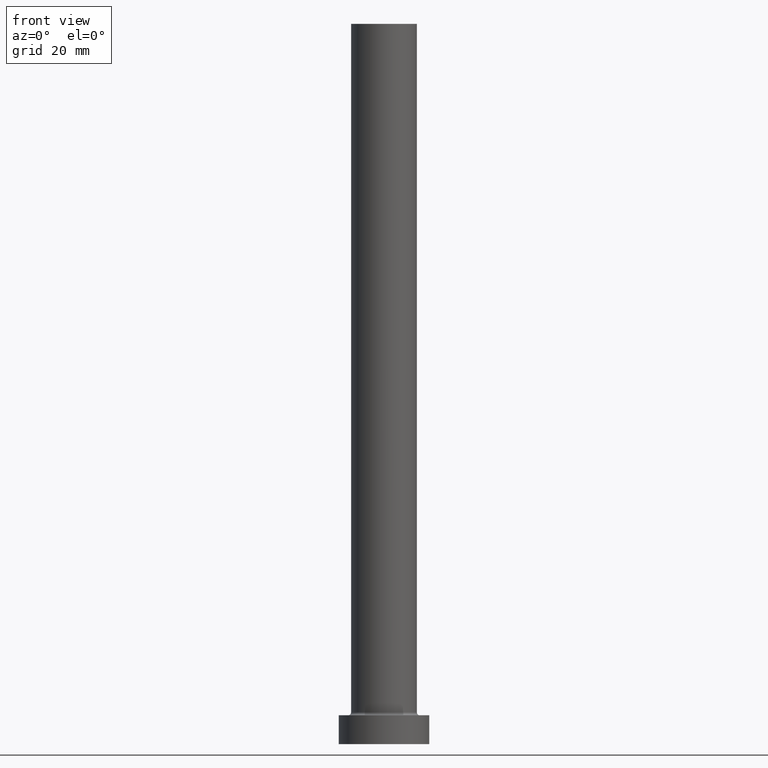
[diagram: clean part render]
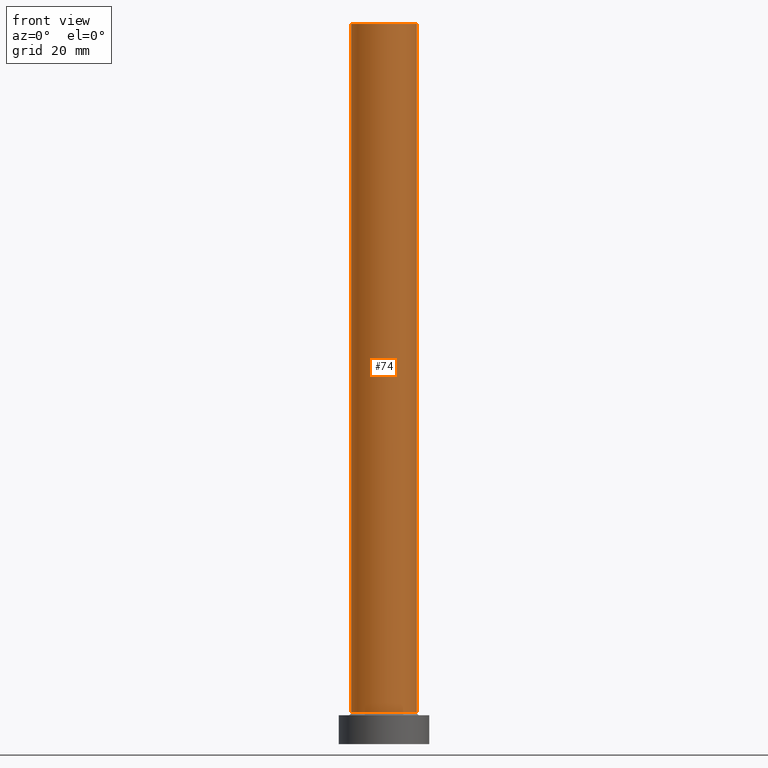
[diagram: same view with one face highlighted and labeled with its STEP entity id]
A machine part, front view. The second image highlights one B-rep face of the part: STEP entity #74.
In plain terms, the highlighted cylindrical surface (edge-blend (fillet) strip) has radius 8 mm, axis along (-0, -0, -1).
Its self-contained STEP definition (entity closure, byte-faithful):
#25 = CARTESIAN_POINT ( 'NONE',  ( 0.000000000000000000, 0.000000000000000000, 7.700000000000012612 ) ) ;
#29 = FACE_OUTER_BOUND ( 'NONE', #222, .T. ) ;
#48 = CIRCLE ( 'NONE', #457, 8.000000000000000000 ) ;
#58 = VECTOR ( 'NONE', #399, 1000.000000000000000 ) ;
#63 = CYLINDRICAL_SURFACE ( 'NONE', #195, 8.000000000000000000 ) ;
#70 = VECTOR ( 'NONE', #77, 1000.000000000000000 ) ;
#74 = ADVANCED_FACE ( 'NONE', ( #29 ), #63, .T. ) ;
#77 = DIRECTION ( 'NONE',  ( -0.000000000000000000, -0.000000000000000000, -1.000000000000000000 ) ) ;
#83 = VERTEX_POINT ( 'NONE', #272 ) ;
#90 = EDGE_CURVE ( 'NONE', #83, #200, #48, .T. ) ;
#103 = CARTESIAN_POINT ( 'NONE',  ( 8.000000000000000000, 9.797174393178823685E-16, 175.0000000000000284 ) ) ;
#108 = DIRECTION ( 'NONE',  ( 1.000000000000000000, 0.000000000000000000, 0.000000000000000000 ) ) ;
#113 = CARTESIAN_POINT ( 'NONE',  ( 8.000000000000000000, 9.797174393178823685E-16, 175.0000000000000284 ) ) ;
#121 = ORIENTED_EDGE ( 'NONE', *, *, #90, .F. ) ;
#123 = EDGE_CURVE ( 'NONE', #83, #196, #364, .T. ) ;
#127 = CARTESIAN_POINT ( 'NONE',  ( 8.000000000000000000, 9.797174393178823685E-16, 7.700000000000012612 ) ) ;
#131 = DIRECTION ( 'NONE',  ( 1.000000000000000000, 0.000000000000000000, 0.000000000000000000 ) ) ;
#148 = CARTESIAN_POINT ( 'NONE',  ( 0.000000000000000000, 0.000000000000000000, 175.0000000000000284 ) ) ;
#164 = CIRCLE ( 'NONE', #325, 8.000000000000000000 ) ;
#166 = DIRECTION ( 'NONE',  ( -0.000000000000000000, -0.000000000000000000, -1.000000000000000000 ) ) ;
#182 = CARTESIAN_POINT ( 'NONE',  ( -8.000000000000000000, 0.000000000000000000, 175.0000000000000284 ) ) ;
#195 = AXIS2_PLACEMENT_3D ( 'NONE', #316, #166, #281 ) ;
#196 = VERTEX_POINT ( 'NONE', #423 ) ;
#200 = VERTEX_POINT ( 'NONE', #103 ) ;
#201 = DIRECTION ( 'NONE',  ( 0.000000000000000000, 0.000000000000000000, 1.000000000000000000 ) ) ;
#222 = EDGE_LOOP ( 'NONE', ( #233, #121, #328, #330 ) ) ;
#233 = ORIENTED_EDGE ( 'NONE', *, *, #292, .F. ) ;
#272 = CARTESIAN_POINT ( 'NONE',  ( -8.000000000000000000, 0.000000000000000000, 175.0000000000000284 ) ) ;
#281 = DIRECTION ( 'NONE',  ( -1.000000000000000000, 0.000000000000000000, 0.000000000000000000 ) ) ;
#287 = DIRECTION ( 'NONE',  ( 0.000000000000000000, 0.000000000000000000, 1.000000000000000000 ) ) ;
#292 = EDGE_CURVE ( 'NONE', #200, #435, #317, .T. ) ;
#316 = CARTESIAN_POINT ( 'NONE',  ( 0.000000000000000000, 0.000000000000000000, 175.0000000000000284 ) ) ;
#317 = LINE ( 'NONE', #113, #70 ) ;
#325 = AXIS2_PLACEMENT_3D ( 'NONE', #25, #201, #131 ) ;
#328 = ORIENTED_EDGE ( 'NONE', *, *, #123, .T. ) ;
#330 = ORIENTED_EDGE ( 'NONE', *, *, #397, .T. ) ;
#364 = LINE ( 'NONE', #182, #58 ) ;
#397 = EDGE_CURVE ( 'NONE', #196, #435, #164, .T. ) ;
#399 = DIRECTION ( 'NONE',  ( -0.000000000000000000, -0.000000000000000000, -1.000000000000000000 ) ) ;
#423 = CARTESIAN_POINT ( 'NONE',  ( -8.000000000000000000, 0.000000000000000000, 7.700000000000012612 ) ) ;
#435 = VERTEX_POINT ( 'NONE', #127 ) ;
#457 = AXIS2_PLACEMENT_3D ( 'NONE', #148, #287, #108 ) ;